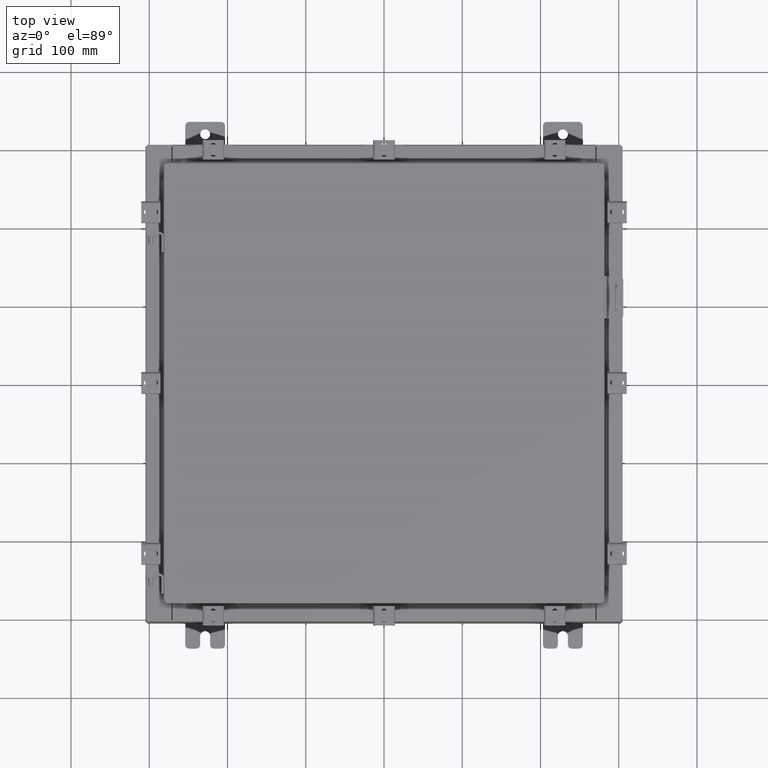
[diagram: clean part render]
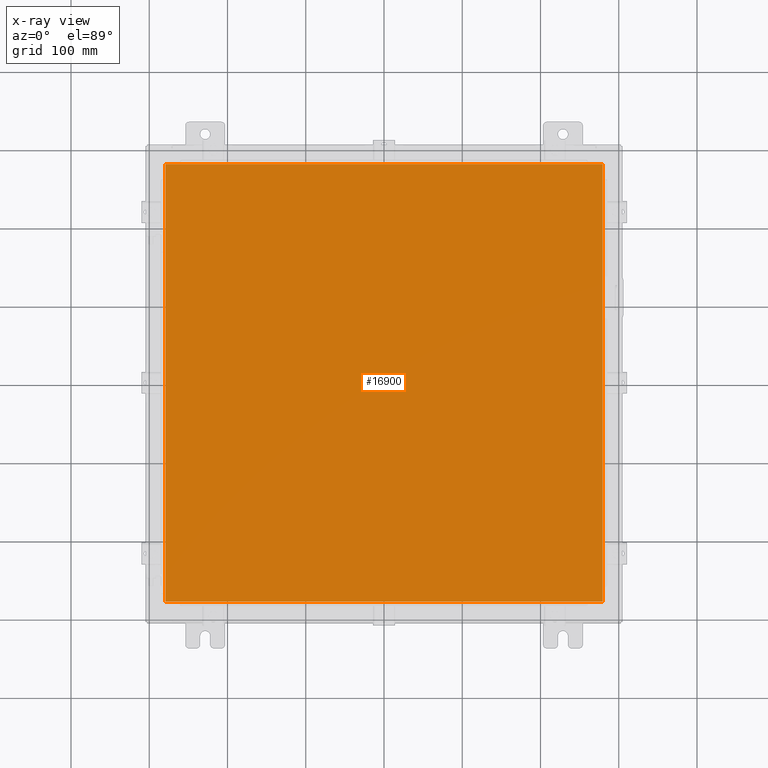
[diagram: x-ray — body ghosted, one internal face saturated and labeled with its STEP entity id]
A machine part, top view, then the same camera in x-ray: the body is ghosted and one INTERNAL B-rep face — a face not visible from any outside direction — is saturated and labeled: STEP entity #16900.
In plain terms, the highlighted planar face has unit normal (0, 0, -1).
Its self-contained STEP definition (entity closure, byte-faithful):
#55 = DIRECTION ( 'NONE',  ( -1.000000000000000000, -0.0000000000000000000, -0.0000000000000000000 ) ) ;
#866 = DIRECTION ( 'NONE',  ( 0.0000000000000000000, 1.000000000000000000, 0.0000000000000000000 ) ) ;
#1390 = CARTESIAN_POINT ( 'NONE',  ( -11.00630000000000300, 11.00629999999999600, -0.07470000000000015500 ) ) ;
#3045 = VECTOR ( 'NONE', #19519, 39.37007874015748100 ) ;
#3158 = DIRECTION ( 'NONE',  ( 0.0000000000000000000, -1.000000000000000000, 0.0000000000000000000 ) ) ;
#3550 = ORIENTED_EDGE ( 'NONE', *, *, #16470, .F. ) ;
#3609 = LINE ( 'NONE', #10891, #3045 ) ;
#5643 = EDGE_LOOP ( 'NONE', ( #20310, #3550, #15575, #21186 ) ) ;
#5747 = FACE_OUTER_BOUND ( 'NONE', #5643, .T. ) ;
#6151 = AXIS2_PLACEMENT_3D ( 'NONE', #16922, #22230, #11854 ) ;
#8215 = CARTESIAN_POINT ( 'NONE',  ( 11.00629999999999400, -11.00630000000000100, -0.07470000000000015500 ) ) ;
#8520 = LINE ( 'NONE', #1390, #12625 ) ;
#9121 = VERTEX_POINT ( 'NONE', #10463 ) ;
#9448 = VERTEX_POINT ( 'NONE', #11342 ) ;
#10113 = PLANE ( 'NONE',  #6151 ) ;
#10463 = CARTESIAN_POINT ( 'NONE',  ( -11.00630000000000300, -11.00630000000000100, -0.07470000000000015500 ) ) ;
#10649 = CARTESIAN_POINT ( 'NONE',  ( 11.00629999999999400, 11.00629999999999600, -0.07470000000000015500 ) ) ;
#10891 = CARTESIAN_POINT ( 'NONE',  ( -11.00630000000000300, -11.00630000000000100, -0.07470000000000015500 ) ) ;
#11342 = CARTESIAN_POINT ( 'NONE',  ( -11.00630000000000300, 11.00629999999999600, -0.07470000000000015500 ) ) ;
#11854 = DIRECTION ( 'NONE',  ( -1.000000000000000000, 0.0000000000000000000, -0.0000000000000000000 ) ) ;
#12207 = LINE ( 'NONE', #10649, #16796 ) ;
#12458 = LINE ( 'NONE', #21752, #16522 ) ;
#12625 = VECTOR ( 'NONE', #3158, 39.37007874015748100 ) ;
#12981 = EDGE_CURVE ( 'NONE', #16133, #9448, #12207, .T. ) ;
#13294 = EDGE_CURVE ( 'NONE', #19670, #16133, #12458, .T. ) ;
#15575 = ORIENTED_EDGE ( 'NONE', *, *, #16213, .F. ) ;
#16133 = VERTEX_POINT ( 'NONE', #18552 ) ;
#16213 = EDGE_CURVE ( 'NONE', #9448, #9121, #8520, .T. ) ;
#16470 = EDGE_CURVE ( 'NONE', #9121, #19670, #3609, .T. ) ;
#16522 = VECTOR ( 'NONE', #866, 39.37007874015748100 ) ;
#16796 = VECTOR ( 'NONE', #55, 39.37007874015748100 ) ;
#16900 = ADVANCED_FACE ( 'NONE', ( #5747 ), #10113, .T. ) ;
#16922 = CARTESIAN_POINT ( 'NONE',  ( 0.0000000000000000000, 0.0000000000000000000, -0.07470000000000015500 ) ) ;
#18552 = CARTESIAN_POINT ( 'NONE',  ( 11.00629999999999400, 11.00629999999999600, -0.07470000000000015500 ) ) ;
#19519 = DIRECTION ( 'NONE',  ( 1.000000000000000000, -0.0000000000000000000, -0.0000000000000000000 ) ) ;
#19670 = VERTEX_POINT ( 'NONE', #8215 ) ;
#20310 = ORIENTED_EDGE ( 'NONE', *, *, #13294, .F. ) ;
#21186 = ORIENTED_EDGE ( 'NONE', *, *, #12981, .F. ) ;
#21752 = CARTESIAN_POINT ( 'NONE',  ( 11.00629999999999400, -11.00630000000000100, -0.07470000000000015500 ) ) ;
#22230 = DIRECTION ( 'NONE',  ( 0.0000000000000000000, 0.0000000000000000000, -1.000000000000000000 ) ) ;